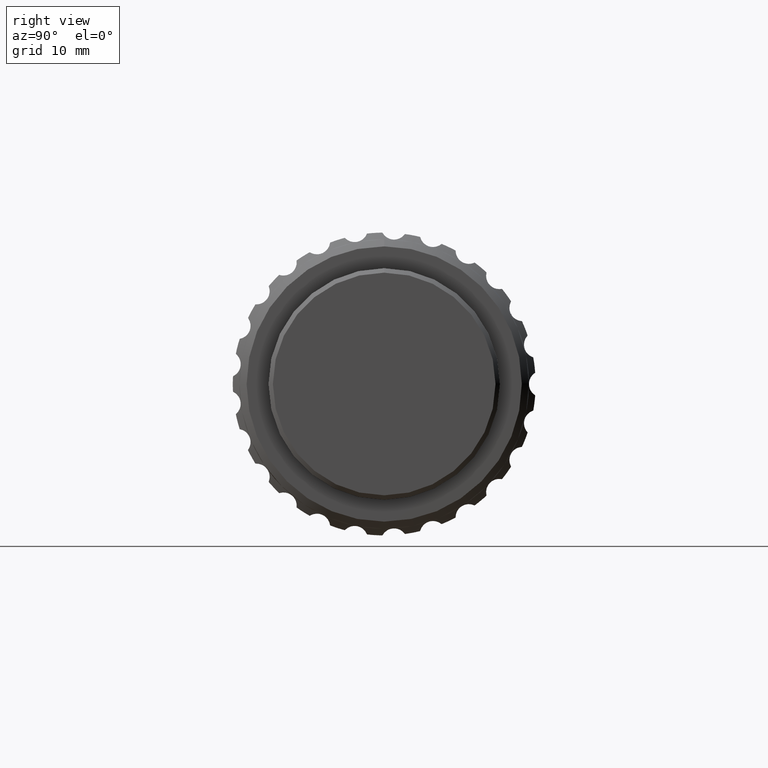
[diagram: clean part render]
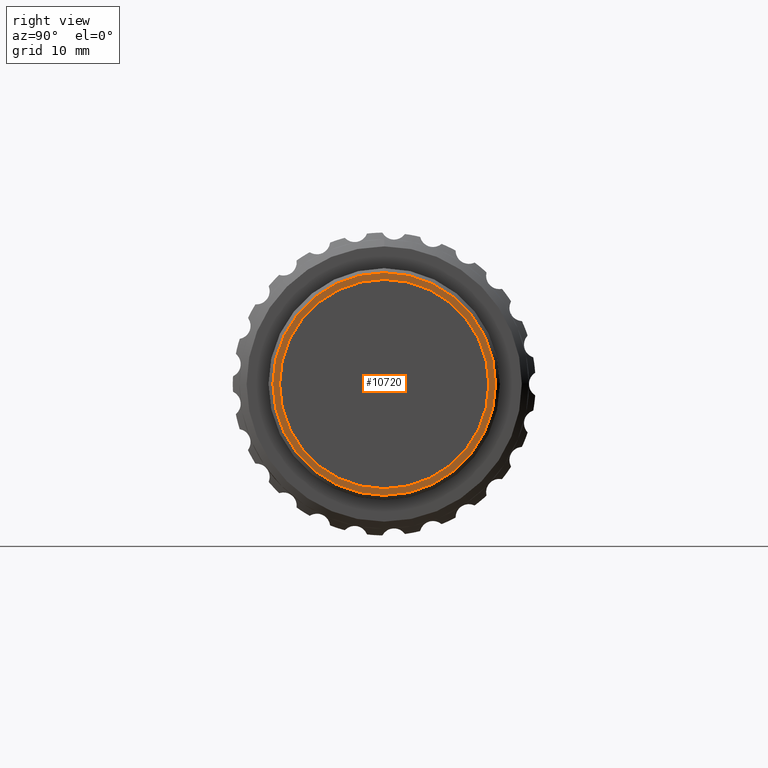
[diagram: same view with one face highlighted and labeled with its STEP entity id]
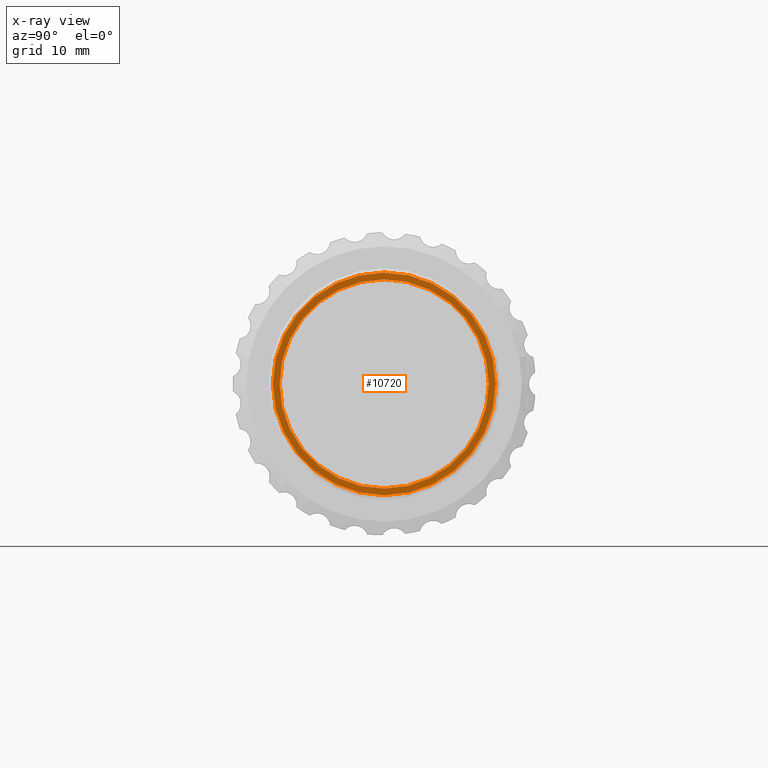
[diagram: x-ray of the same camera — body ghosted, the highlighted face saturated]
A machine part, right view. The second image highlights one B-rep face of the part: STEP entity #10720.
The next image is the same camera in x-ray: the body ghosted, the highlighted face saturated — about 0% of this face is hidden behind the body in this view.
In plain terms, the highlighted planar face has unit normal (-1, 0, -0).
Its self-contained STEP definition (entity closure, byte-faithful):
#155 = AXIS2_PLACEMENT_3D ( 'NONE', #10866, #27864, #10441 ) ;
#1595 = EDGE_LOOP ( 'NONE', ( #13210, #4976 ) ) ;
#2734 = EDGE_LOOP ( 'NONE', ( #18630, #19069 ) ) ;
#3287 = CARTESIAN_POINT ( 'NONE',  ( 99.99999999999998579, 0.000000000000000000, 0.000000000000000000 ) ) ;
#3412 = DIRECTION ( 'NONE',  ( 0.000000000000000000, 0.000000000000000000, 1.000000000000000000 ) ) ;
#3794 = EDGE_CURVE ( 'NONE', #4007, #17869, #12191, .T. ) ;
#3943 = PLANE ( 'NONE',  #24145 ) ;
#4007 = VERTEX_POINT ( 'NONE', #20373 ) ;
#4976 = ORIENTED_EDGE ( 'NONE', *, *, #17600, .F. ) ;
#5264 = DIRECTION ( 'NONE',  ( -0.000000000000000000, 0.000000000000000000, 1.000000000000000000 ) ) ;
#5625 = CIRCLE ( 'NONE', #23404, 11.75000000000000000 ) ;
#7079 = EDGE_CURVE ( 'NONE', #31413, #23509, #5625, .T. ) ;
#10420 = DIRECTION ( 'NONE',  ( -1.000000000000000000, -0.000000000000000000, -0.000000000000000000 ) ) ;
#10441 = DIRECTION ( 'NONE',  ( 0.000000000000000000, 0.000000000000000000, 1.000000000000000000 ) ) ;
#10599 = CARTESIAN_POINT ( 'NONE',  ( 99.99999999999998579, 1.438959988998140160E-15, -11.75000000000000000 ) ) ;
#10720 = ADVANCED_FACE ( 'NONE', ( #10945, #27624 ), #3943, .F. ) ;
#10772 = DIRECTION ( 'NONE',  ( 0.000000000000000000, 0.000000000000000000, 1.000000000000000000 ) ) ;
#10866 = CARTESIAN_POINT ( 'NONE',  ( 99.99999999999998579, 0.000000000000000000, 0.000000000000000000 ) ) ;
#10945 = FACE_OUTER_BOUND ( 'NONE', #1595, .T. ) ;
#12191 = CIRCLE ( 'NONE', #12690, 12.50000000000000000 ) ;
#12690 = AXIS2_PLACEMENT_3D ( 'NONE', #20252, #10420, #3412 ) ;
#13210 = ORIENTED_EDGE ( 'NONE', *, *, #3794, .F. ) ;
#13485 = CARTESIAN_POINT ( 'NONE',  ( 99.99999999999998579, 0.000000000000000000, -12.50000000000000000 ) ) ;
#13892 = CIRCLE ( 'NONE', #155, 12.50000000000000000 ) ;
#14013 = EDGE_CURVE ( 'NONE', #23509, #31413, #31426, .T. ) ;
#14848 = CARTESIAN_POINT ( 'NONE',  ( 99.99999999999998579, 0.000000000000000000, 11.75000000000000000 ) ) ;
#15838 = CARTESIAN_POINT ( 'NONE',  ( 99.99999999999998579, 1.530808498934191521E-15, -12.50000000000000000 ) ) ;
#16025 = DIRECTION ( 'NONE',  ( -1.000000000000000000, 0.000000000000000000, -0.000000000000000000 ) ) ;
#17600 = EDGE_CURVE ( 'NONE', #17869, #4007, #13892, .T. ) ;
#17869 = VERTEX_POINT ( 'NONE', #15838 ) ;
#18630 = ORIENTED_EDGE ( 'NONE', *, *, #14013, .T. ) ;
#18774 = DIRECTION ( 'NONE',  ( 0.000000000000000000, 0.000000000000000000, 1.000000000000000000 ) ) ;
#19069 = ORIENTED_EDGE ( 'NONE', *, *, #7079, .T. ) ;
#20252 = CARTESIAN_POINT ( 'NONE',  ( 99.99999999999998579, 0.000000000000000000, 0.000000000000000000 ) ) ;
#20288 = DIRECTION ( 'NONE',  ( -1.000000000000000000, -0.000000000000000000, -0.000000000000000000 ) ) ;
#20373 = CARTESIAN_POINT ( 'NONE',  ( 99.99999999999998579, 0.000000000000000000, 12.50000000000000000 ) ) ;
#21641 = CARTESIAN_POINT ( 'NONE',  ( 99.99999999999998579, 0.000000000000000000, 0.000000000000000000 ) ) ;
#23404 = AXIS2_PLACEMENT_3D ( 'NONE', #21641, #31498, #18774 ) ;
#23509 = VERTEX_POINT ( 'NONE', #14848 ) ;
#24145 = AXIS2_PLACEMENT_3D ( 'NONE', #13485, #16025, #5264 ) ;
#25839 = AXIS2_PLACEMENT_3D ( 'NONE', #3287, #20288, #10772 ) ;
#27624 = FACE_BOUND ( 'NONE', #2734, .T. ) ;
#27864 = DIRECTION ( 'NONE',  ( -1.000000000000000000, -0.000000000000000000, -0.000000000000000000 ) ) ;
#31413 = VERTEX_POINT ( 'NONE', #10599 ) ;
#31426 = CIRCLE ( 'NONE', #25839, 11.75000000000000000 ) ;
#31498 = DIRECTION ( 'NONE',  ( -1.000000000000000000, -0.000000000000000000, -0.000000000000000000 ) ) ;